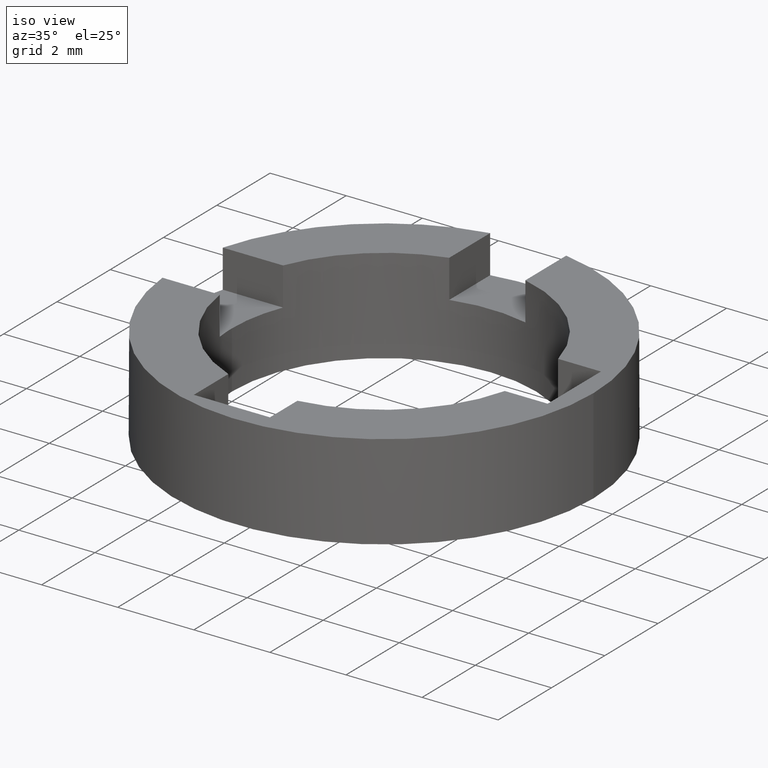
[diagram: clean part render]
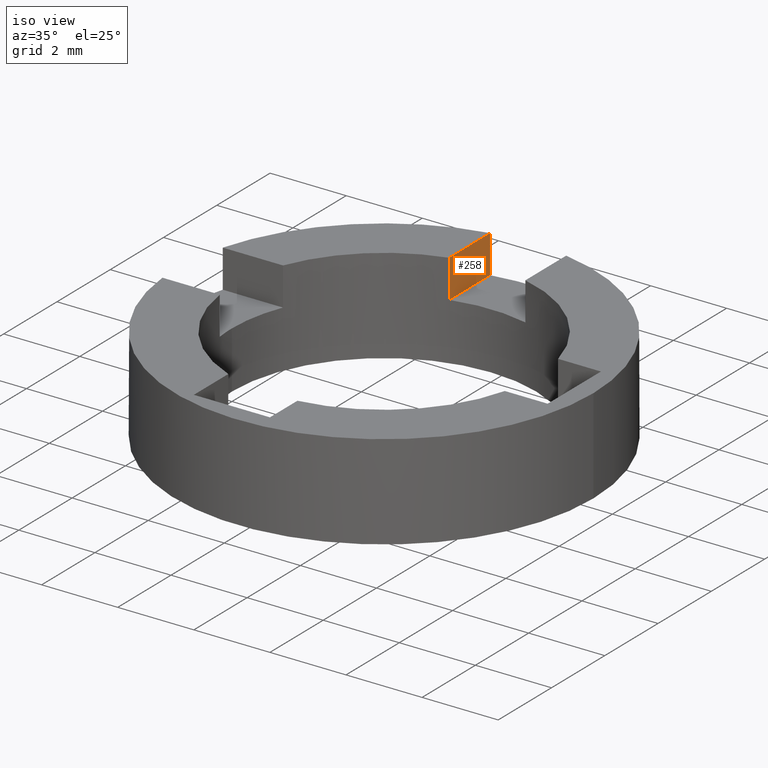
[diagram: same view with one face highlighted and labeled with its STEP entity id]
A machine part, iso view. The second image highlights one B-rep face of the part: STEP entity #258.
In plain terms, the highlighted planar face has unit normal (-1, 0, 0).
Its self-contained STEP definition (entity closure, byte-faithful):
#10 = DIRECTION ( 'NONE',  ( -0.000000000000000000, -1.000000000000000000, -0.000000000000000000 ) ) ;
#99 = CARTESIAN_POINT ( 'NONE',  ( -1.000000000000000000, 5.408326913195983465, 2.500000000000000000 ) ) ;
#111 = LINE ( 'NONE', #284, #356 ) ;
#123 = DIRECTION ( 'NONE',  ( -0.000000000000000000, -1.000000000000000000, -0.000000000000000000 ) ) ;
#129 = DIRECTION ( 'NONE',  ( -0.000000000000000000, -0.000000000000000000, -1.000000000000000000 ) ) ;
#138 = CARTESIAN_POINT ( 'NONE',  ( -1.000000000000000000, 3.872983346207417021, 2.500000000000000000 ) ) ;
#157 = PLANE ( 'NONE',  #299 ) ;
#172 = EDGE_CURVE ( 'NONE', #464, #501, #456, .T. ) ;
#183 = LINE ( 'NONE', #557, #437 ) ;
#193 = EDGE_LOOP ( 'NONE', ( #427, #572, #760, #303 ) ) ;
#251 = DIRECTION ( 'NONE',  ( 0.000000000000000000, 0.000000000000000000, 1.000000000000000000 ) ) ;
#255 = VERTEX_POINT ( 'NONE', #99 ) ;
#258 = ADVANCED_FACE ( 'NONE', ( #465 ), #157, .F. ) ;
#284 = CARTESIAN_POINT ( 'NONE',  ( -1.000000000000000000, 3.305037895305897422, 2.500000000000000000 ) ) ;
#299 = AXIS2_PLACEMENT_3D ( 'NONE', #718, #614, #251 ) ;
#303 = ORIENTED_EDGE ( 'NONE', *, *, #545, .F. ) ;
#329 = EDGE_CURVE ( 'NONE', #255, #464, #111, .T. ) ;
#356 = VECTOR ( 'NONE', #10, 1000.000000000000000 ) ;
#368 = CARTESIAN_POINT ( 'NONE',  ( -1.000000000000000000, 3.872983346207417021, 1.500000000000000000 ) ) ;
#382 = DIRECTION ( 'NONE',  ( -0.000000000000000000, -0.000000000000000000, -1.000000000000000000 ) ) ;
#401 = VECTOR ( 'NONE', #129, 1000.000000000000000 ) ;
#409 = LINE ( 'NONE', #582, #401 ) ;
#419 = CARTESIAN_POINT ( 'NONE',  ( -1.000000000000000000, 3.872983346207417021, 2.500000000000000000 ) ) ;
#427 = ORIENTED_EDGE ( 'NONE', *, *, #329, .T. ) ;
#437 = VECTOR ( 'NONE', #123, 1000.000000000000000 ) ;
#456 = LINE ( 'NONE', #138, #724 ) ;
#464 = VERTEX_POINT ( 'NONE', #419 ) ;
#465 = FACE_OUTER_BOUND ( 'NONE', #193, .T. ) ;
#501 = VERTEX_POINT ( 'NONE', #368 ) ;
#545 = EDGE_CURVE ( 'NONE', #255, #732, #409, .T. ) ;
#557 = CARTESIAN_POINT ( 'NONE',  ( -1.000000000000000000, 3.305037895305897422, 1.500000000000000000 ) ) ;
#572 = ORIENTED_EDGE ( 'NONE', *, *, #172, .T. ) ;
#582 = CARTESIAN_POINT ( 'NONE',  ( -1.000000000000000000, 5.408326913195983465, 2.500000000000000000 ) ) ;
#597 = CARTESIAN_POINT ( 'NONE',  ( -1.000000000000000000, 5.408326913195983465, 1.500000000000000000 ) ) ;
#614 = DIRECTION ( 'NONE',  ( -1.000000000000000000, 0.000000000000000000, 0.000000000000000000 ) ) ;
#718 = CARTESIAN_POINT ( 'NONE',  ( -1.000000000000000000, 3.305037895305897422, 1.500000000000000000 ) ) ;
#724 = VECTOR ( 'NONE', #382, 1000.000000000000000 ) ;
#732 = VERTEX_POINT ( 'NONE', #597 ) ;
#758 = EDGE_CURVE ( 'NONE', #732, #501, #183, .T. ) ;
#760 = ORIENTED_EDGE ( 'NONE', *, *, #758, .F. ) ;